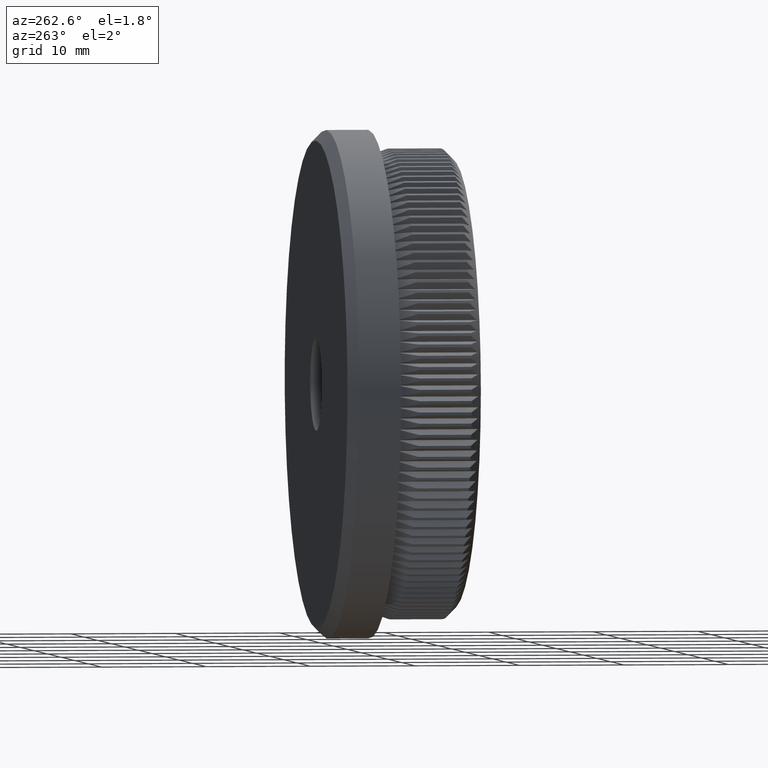
[diagram: clean part render]
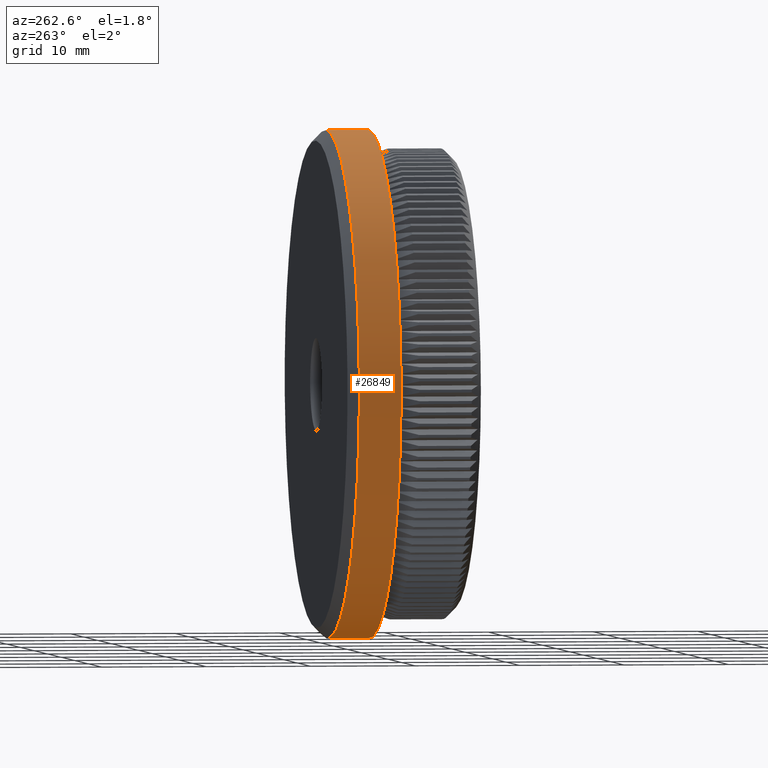
[diagram: same view with one face highlighted and labeled with its STEP entity id]
A machine part, auxiliary view. The second image highlights one B-rep face of the part: STEP entity #26849.
In plain terms, the highlighted cylindrical surface (partial cylindrical patch) has radius 24.15 mm, axis along (-0, -1, -0).
Its self-contained STEP definition (entity closure, byte-faithful):
#264 = DIRECTION ( 'NONE',  ( -0.0000000000000000000, -1.000000000000000000, -0.0000000000000000000 ) ) ;
#540 = EDGE_LOOP ( 'NONE', ( #27878, #23444, #8740, #2063 ) ) ;
#738 = DIRECTION ( 'NONE',  ( -0.0000000000000000000, -1.000000000000000000, -0.0000000000000000000 ) ) ;
#891 = CIRCLE ( 'NONE', #25825, 24.14999999999999900 ) ;
#2063 = ORIENTED_EDGE ( 'NONE', *, *, #17799, .F. ) ;
#3100 = VERTEX_POINT ( 'NONE', #6747 ) ;
#3604 = CARTESIAN_POINT ( 'NONE',  ( 0.0000000000000000000, 0.0000000000000000000, 0.0000000000000000000 ) ) ;
#3879 = DIRECTION ( 'NONE',  ( -0.0000000000000000000, -1.000000000000000000, -0.0000000000000000000 ) ) ;
#4002 = VECTOR ( 'NONE', #28646, 1000.000000000000000 ) ;
#5550 = DIRECTION ( 'NONE',  ( 0.0000000000000000000, 0.0000000000000000000, 1.000000000000000000 ) ) ;
#5618 = LINE ( 'NONE', #25886, #4002 ) ;
#6004 = VERTEX_POINT ( 'NONE', #30790 ) ;
#6747 = CARTESIAN_POINT ( 'NONE',  ( 0.0000000000000000000, 11.99999999999999500, -24.14999999999999900 ) ) ;
#7503 = CARTESIAN_POINT ( 'NONE',  ( 2.957522019940857900E-015, 8.000000000000000000, 24.14999999999999900 ) ) ;
#8383 = LINE ( 'NONE', #12843, #30496 ) ;
#8561 = DIRECTION ( 'NONE',  ( 0.0000000000000000000, 0.0000000000000000000, -1.000000000000000000 ) ) ;
#8740 = ORIENTED_EDGE ( 'NONE', *, *, #17040, .T. ) ;
#8809 = AXIS2_PLACEMENT_3D ( 'NONE', #28055, #264, #5550 ) ;
#9164 = CARTESIAN_POINT ( 'NONE',  ( 0.0000000000000000000, 8.000000000000000000, 0.0000000000000000000 ) ) ;
#12756 = EDGE_CURVE ( 'NONE', #6004, #3100, #32047, .T. ) ;
#12843 = CARTESIAN_POINT ( 'NONE',  ( 0.0000000000000000000, 0.0000000000000000000, -24.14999999999999900 ) ) ;
#13900 = DIRECTION ( 'NONE',  ( 0.0000000000000000000, 0.0000000000000000000, -1.000000000000000000 ) ) ;
#14146 = VERTEX_POINT ( 'NONE', #7503 ) ;
#17040 = EDGE_CURVE ( 'NONE', #3100, #22159, #8383, .T. ) ;
#17799 = EDGE_CURVE ( 'NONE', #14146, #22159, #891, .T. ) ;
#18046 = CYLINDRICAL_SURFACE ( 'NONE', #18778, 24.14999999999999900 ) ;
#18778 = AXIS2_PLACEMENT_3D ( 'NONE', #3604, #738, #8561 ) ;
#22159 = VERTEX_POINT ( 'NONE', #26656 ) ;
#23181 = FACE_OUTER_BOUND ( 'NONE', #540, .T. ) ;
#23444 = ORIENTED_EDGE ( 'NONE', *, *, #12756, .T. ) ;
#25825 = AXIS2_PLACEMENT_3D ( 'NONE', #9164, #3879, #13900 ) ;
#25886 = CARTESIAN_POINT ( 'NONE',  ( 2.957522019940857900E-015, 0.0000000000000000000, 24.14999999999999900 ) ) ;
#26656 = CARTESIAN_POINT ( 'NONE',  ( 0.0000000000000000000, 8.000000000000000000, -24.14999999999999900 ) ) ;
#26849 = ADVANCED_FACE ( 'NONE', ( #23181 ), #18046, .T. ) ;
#27878 = ORIENTED_EDGE ( 'NONE', *, *, #32228, .F. ) ;
#28055 = CARTESIAN_POINT ( 'NONE',  ( 0.0000000000000000000, 11.99999999999999500, 0.0000000000000000000 ) ) ;
#28646 = DIRECTION ( 'NONE',  ( -0.0000000000000000000, -1.000000000000000000, -0.0000000000000000000 ) ) ;
#30493 = DIRECTION ( 'NONE',  ( -0.0000000000000000000, -1.000000000000000000, -0.0000000000000000000 ) ) ;
#30496 = VECTOR ( 'NONE', #30493, 1000.000000000000000 ) ;
#30790 = CARTESIAN_POINT ( 'NONE',  ( 2.957522019940857900E-015, 11.99999999999999500, 24.14999999999999900 ) ) ;
#32047 = CIRCLE ( 'NONE', #8809, 24.14999999999999900 ) ;
#32228 = EDGE_CURVE ( 'NONE', #6004, #14146, #5618, .T. ) ;